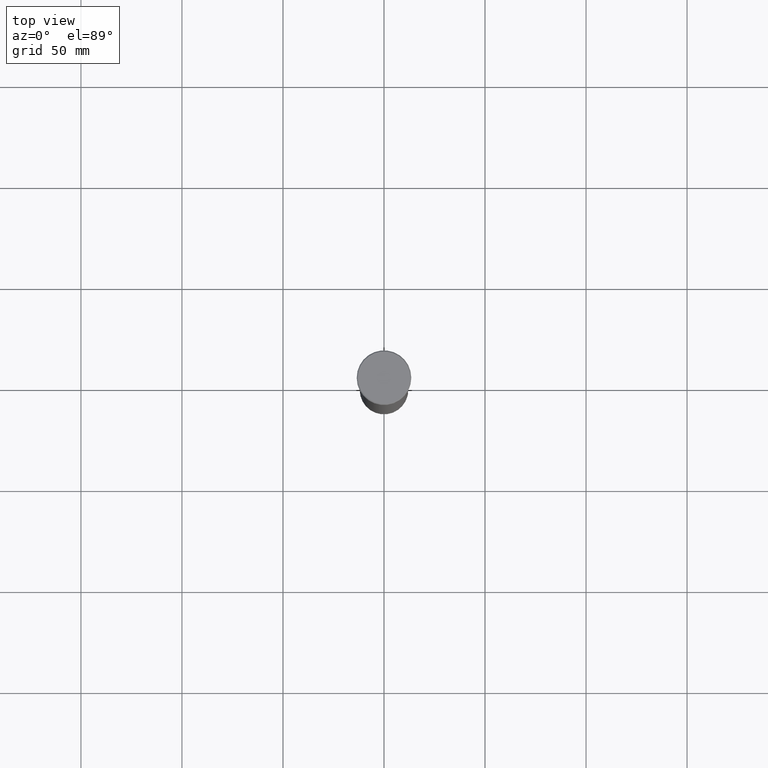
[diagram: clean part render]
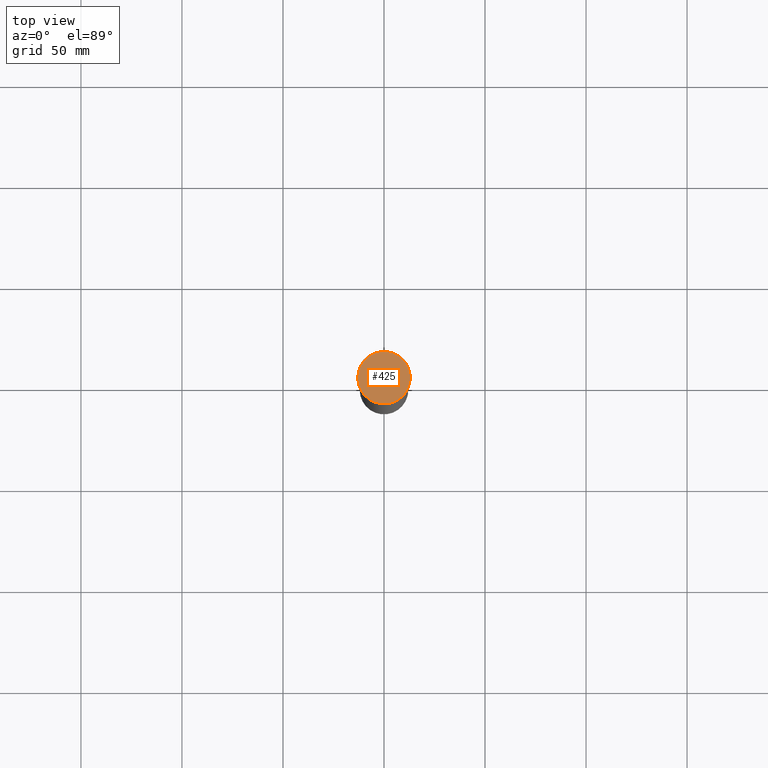
[diagram: same view with one face highlighted and labeled with its STEP entity id]
A machine part, top view. The second image highlights one B-rep face of the part: STEP entity #425.
In plain terms, the highlighted planar face has unit normal (0, -0, 1).
Its self-contained STEP definition (entity closure, byte-faithful):
#14 = AXIS2_PLACEMENT_3D ( 'NONE', #88, #381, #518 ) ;
#30 = EDGE_LOOP ( 'NONE', ( #452, #318 ) ) ;
#36 = AXIS2_PLACEMENT_3D ( 'NONE', #364, #76, #369 ) ;
#55 = AXIS2_PLACEMENT_3D ( 'NONE', #552, #188, #599 ) ;
#76 = DIRECTION ( 'NONE',  ( -0.000000000000000000, -0.000000000000000000, 1.000000000000000000 ) ) ;
#88 = CARTESIAN_POINT ( 'NONE',  ( 0.000000000000000000, 0.000000000000000000, 0.000000000000000000 ) ) ;
#139 = PLANE ( 'NONE',  #14 ) ;
#150 = CARTESIAN_POINT ( 'NONE',  ( 12.99999999999999645, 1.622657008870242882E-15, 0.000000000000000000 ) ) ;
#188 = DIRECTION ( 'NONE',  ( -0.000000000000000000, -0.000000000000000000, 1.000000000000000000 ) ) ;
#275 = EDGE_CURVE ( 'NONE', #465, #498, #576, .T. ) ;
#318 = ORIENTED_EDGE ( 'NONE', *, *, #593, .T. ) ;
#334 = FACE_OUTER_BOUND ( 'NONE', #30, .T. ) ;
#350 = CARTESIAN_POINT ( 'NONE',  ( -12.99999999999999645, 0.000000000000000000, 0.000000000000000000 ) ) ;
#364 = CARTESIAN_POINT ( 'NONE',  ( 0.000000000000000000, 0.000000000000000000, 0.000000000000000000 ) ) ;
#369 = DIRECTION ( 'NONE',  ( 1.000000000000000000, 0.000000000000000000, 0.000000000000000000 ) ) ;
#381 = DIRECTION ( 'NONE',  ( 0.000000000000000000, -0.000000000000000000, 1.000000000000000000 ) ) ;
#395 = CIRCLE ( 'NONE', #36, 12.99999999999999645 ) ;
#425 = ADVANCED_FACE ( 'NONE', ( #334 ), #139, .T. ) ;
#452 = ORIENTED_EDGE ( 'NONE', *, *, #275, .T. ) ;
#465 = VERTEX_POINT ( 'NONE', #350 ) ;
#498 = VERTEX_POINT ( 'NONE', #150 ) ;
#518 = DIRECTION ( 'NONE',  ( 1.000000000000000000, 0.000000000000000000, 0.000000000000000000 ) ) ;
#552 = CARTESIAN_POINT ( 'NONE',  ( 0.000000000000000000, 0.000000000000000000, 0.000000000000000000 ) ) ;
#576 = CIRCLE ( 'NONE', #55, 12.99999999999999645 ) ;
#593 = EDGE_CURVE ( 'NONE', #498, #465, #395, .T. ) ;
#599 = DIRECTION ( 'NONE',  ( 1.000000000000000000, 0.000000000000000000, 0.000000000000000000 ) ) ;